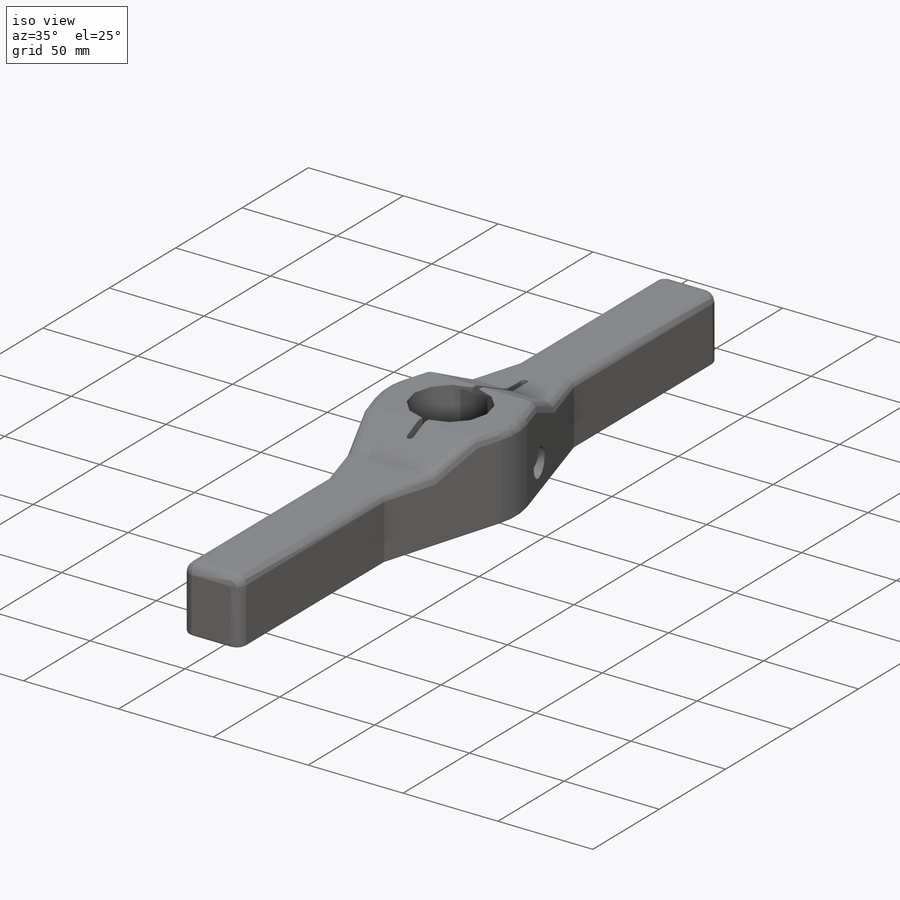
[diagram: iso view]
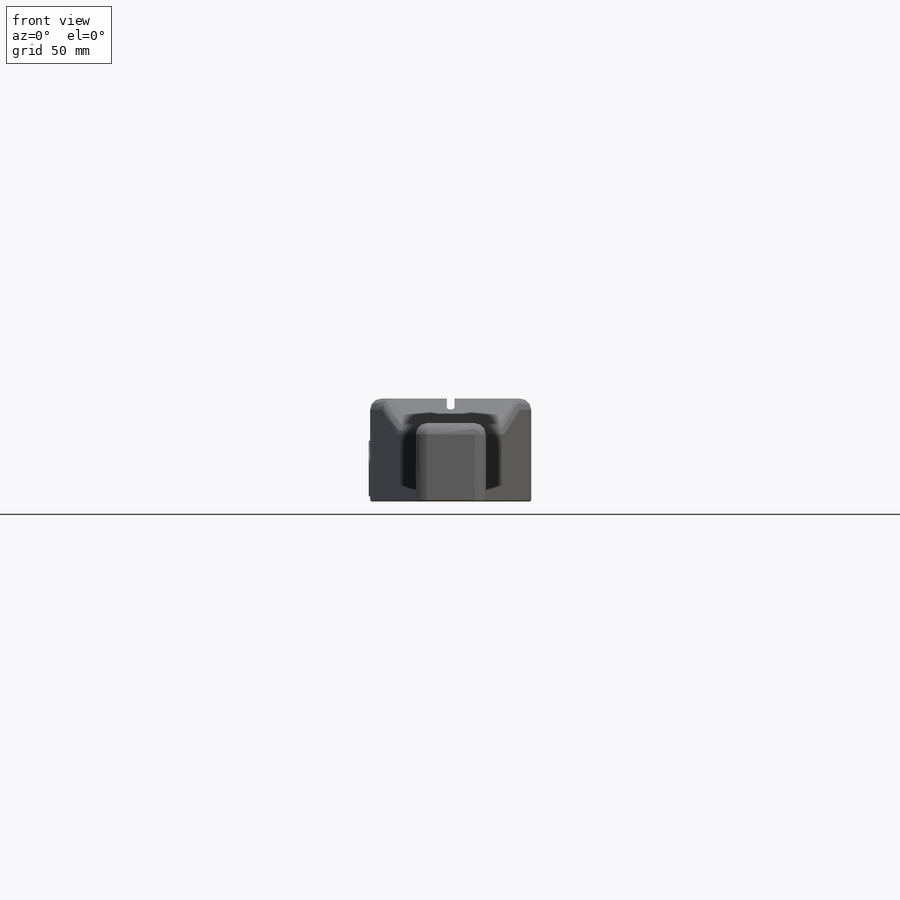
[diagram: front view]
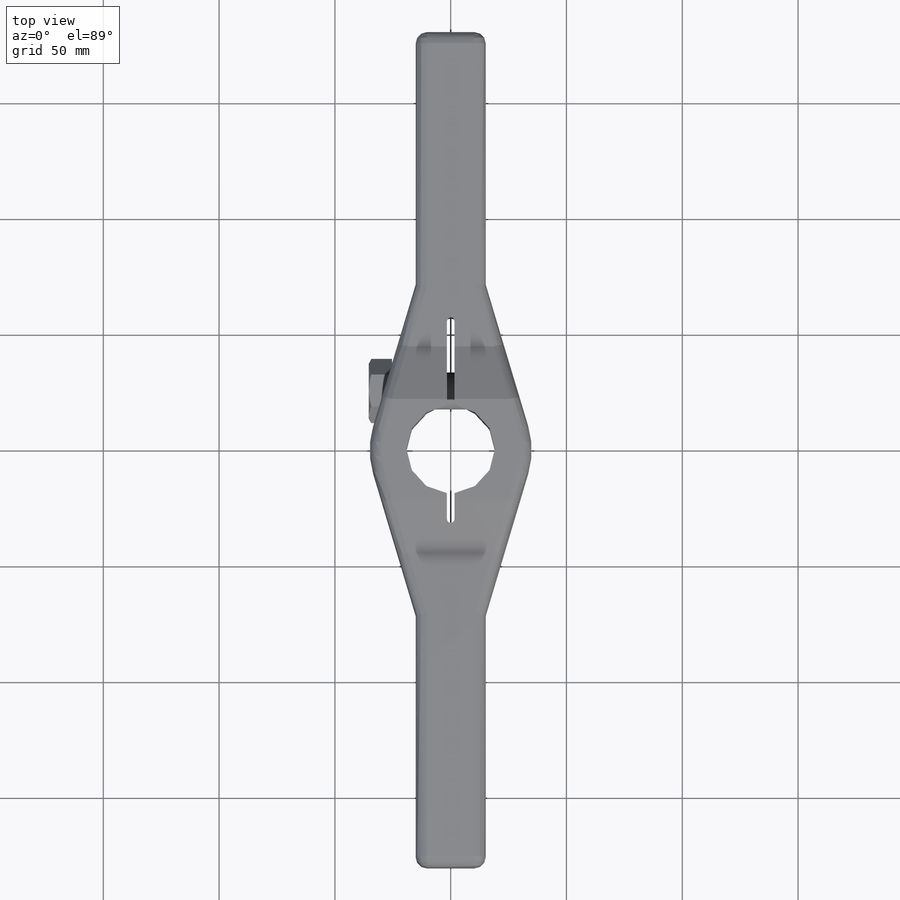
[diagram: top view]
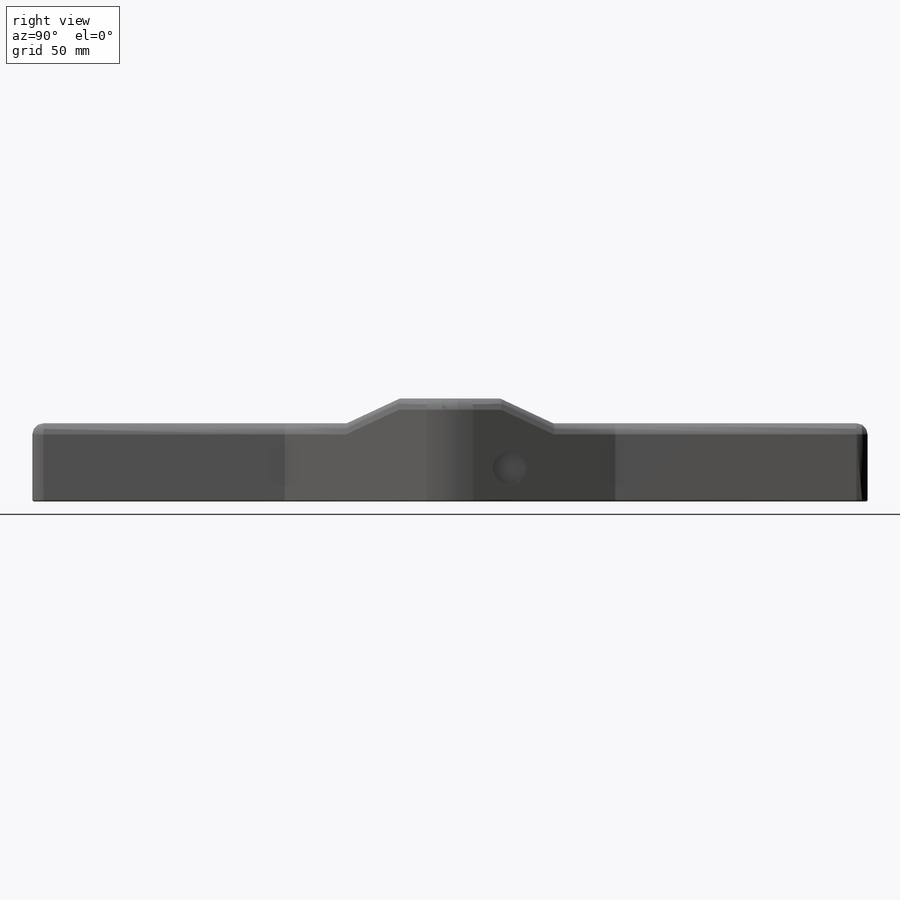
[diagram: right view]
SOLIDWORKS PART (.sldprt)
format: sldprt  version: not decoded by parser v0  size: 452,608 bytes
history: native  units: mm
features: sketch x13, extrude x6, cut_extrude x4, fillet x3, cut_revolve x2, mirror x2, material x1, plane x1 (+13 scaffold rows collapsed)
feature tree (45):
  scaffold x13  (default folders/planes/origin — collapsed)
  material  "Alloy Steel"
  sketch  "Sketch1"  dims[c1.D1=38.1381mm c1.D2=34.925mm c1.D3=14.2748mm c1.D4=103.1748mm c2.D3=71.374mm c2.D4=30.226mm c2.D5=70.104mm]
  extrude  "Extrude1"  Depth=44.45mm
  sketch  "Sketch2"  dims[c1.D1=42.164mm c1.D2=~65.855618mm c2.D2=25.0deg c2.D3=71.12mm c2.D1=33.782mm c3.D3=44.577mm]
  cut_extrude  "Cut-Extrude1"  [1 undecoded]
  sketch  "Sketch3"  dims[D1=3.175mm D2=57.15mm D3=14.2748mm]
  cut_extrude  "Cut-Extrude2"  Depth=3.175mm
  sketch  "Sketch4"  dims[D1=3.302mm]
  cut_extrude  "Cut-Extrude3"  [1 undecoded]
  plane  "Plane1"  Offset=25.629mm
  sketch  "Sketch11"  dims[D1=180.34mm]
  extrude  "Extrude4"  Depth=33.782mm
  sketch  "Sketch14"
  sketch  "Sketch12"  dims[D1=0.0mm]
  extrude  "Extrude5"  [1 undecoded]
  sketch  "Sketch5"  dims[D1=14.2748mm D2=16.256mm D3=34.925mm D4=9.5758mm D5=14.5288mm]
  cut_revolve  "Cut-Revolve1"  Angle=360deg
  sketch  "Sketch6"  dims[D1=24.003mm]
  extrude  "Extrude2"  Depth=10.0076mm
  sketch  "Sketch7"  dims[D1=16.002mm]
  extrude  "Extrude3"  Depth=48.387mm
  sketch  "Sketch8"  dims[c1.D1=~2.933573mm c2.D1=30.0deg c2.D2=3.175mm]
  cut_revolve  "Cut-Revolve2"  Angle=360deg
  mirror  "Mirror1"
  mirror  "Mirror2"
  sketch  "Sketch16"
  extrude  "Extrude6"  [1 undecoded]
  fillet  "Fillet2"  Radius=4.826mm
  fillet  "Fillet1"  Radius=4.826mm
  fillet  "Fillet3"  Radius=0.762mm
  sketch  "Sketch17"  dims[D1=30.099mm]
  cut_extrude  "Cut-Extrude4"  [1 undecoded]
decode coverage: 21 of 30 modeling features carry decoded parameters
note: ~ marks probable driven/reference dimensions
note: 5 parameter values undecoded
summary: no parameter record found for 5 features
note: suppression state not decoded; provenance and decode notes live in map.json
